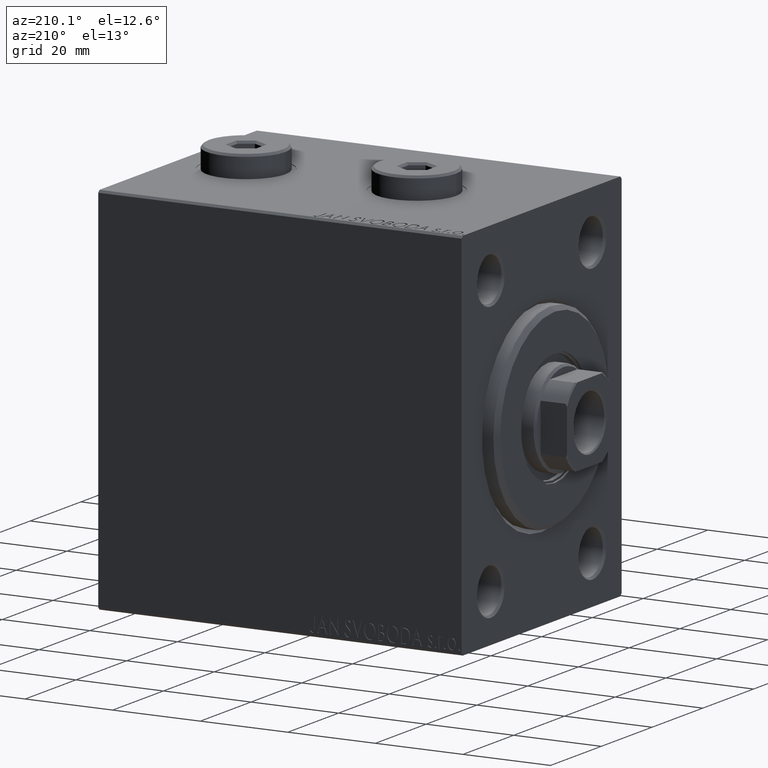
[diagram: clean part render]
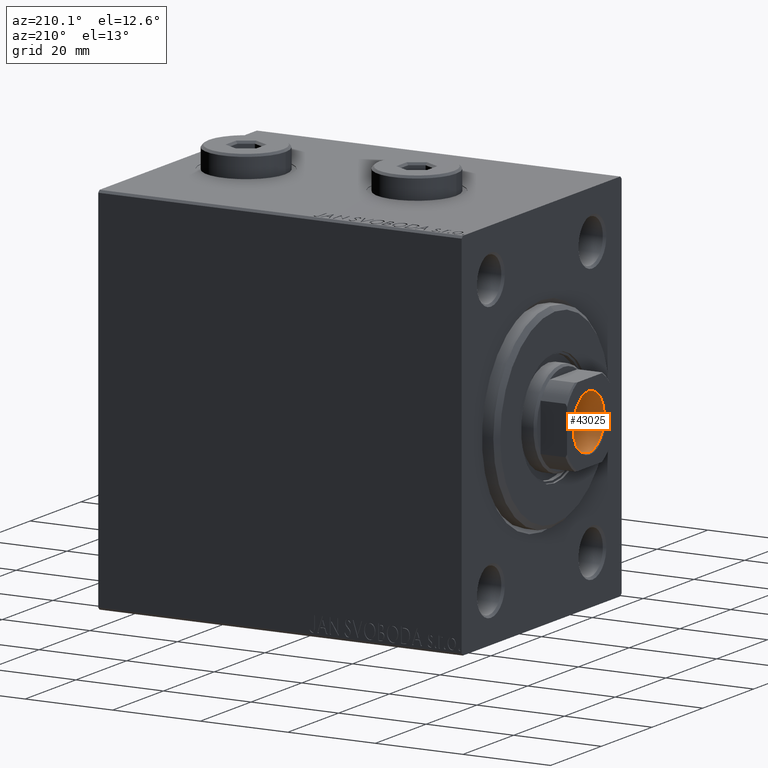
[diagram: same view with one face highlighted and labeled with its STEP entity id]
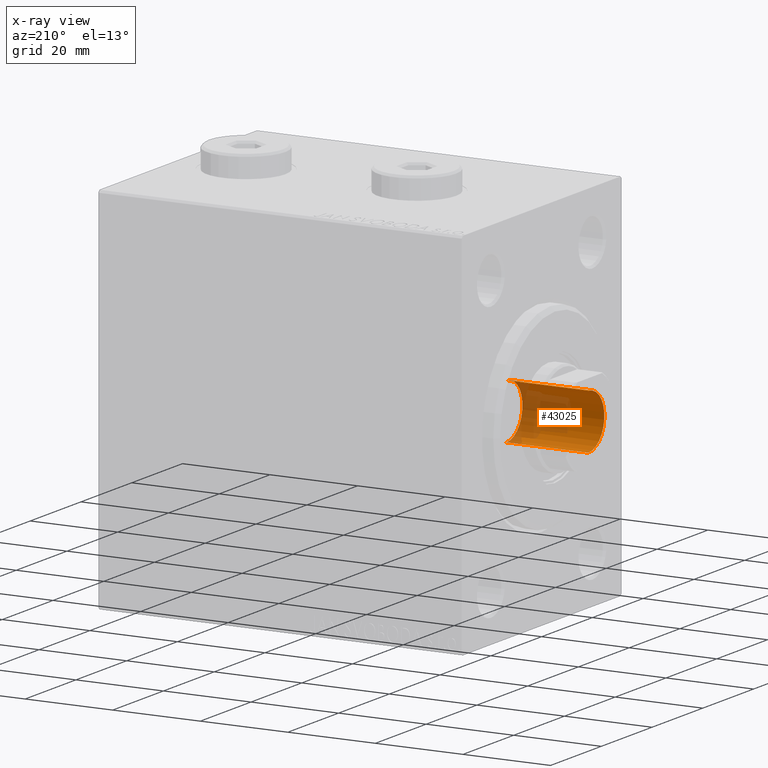
[diagram: x-ray of the same camera — body ghosted, the highlighted face saturated]
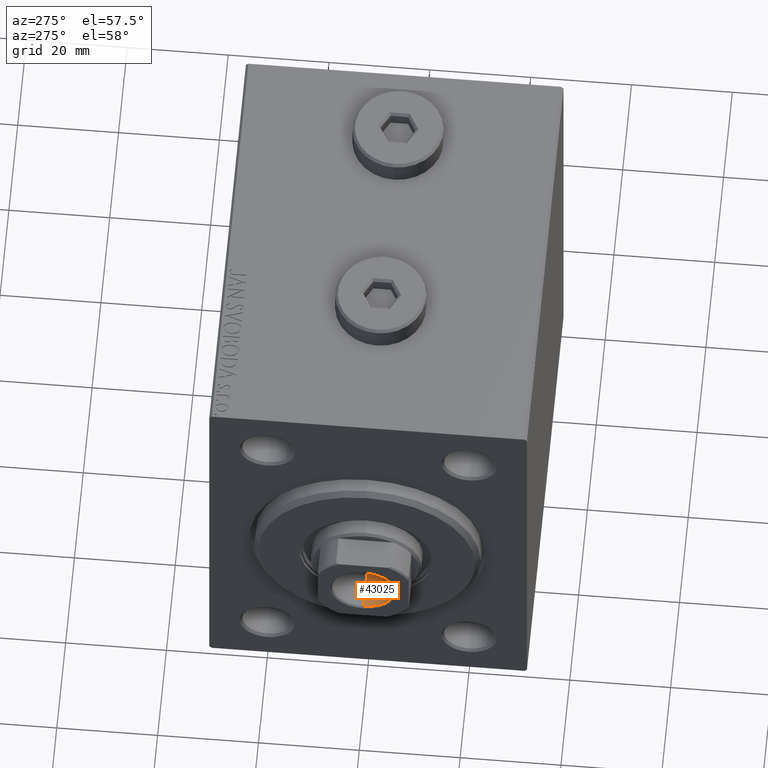
[diagram: same view with one face highlighted and labeled with its STEP entity id]
A machine part, auxiliary view. The second image highlights one B-rep face of the part: STEP entity #43025.
The next image is the same camera in x-ray: the body ghosted, the highlighted face saturated — about 43% of this face is hidden behind the body in this view.
A second angle (auxiliary view) of the same face is appended — the face is thin or edge-on in the first view.
In plain terms, the highlighted cylindrical surface (edge-blend (fillet) strip) has radius 6.25 mm, axis along (-1, 0, 0).
Its self-contained STEP definition (entity closure, byte-faithful):
#229 = CARTESIAN_POINT ( 'NONE',  ( 0.000000000000000000, 0.000000000000000000, 43.00000000000000000 ) ) ;
#367 = EDGE_CURVE ( 'NONE', #23323, #38584, #3395, .T. ) ;
#3395 = CIRCLE ( 'NONE', #4147, 6.249999999999995559 ) ;
#3845 = DIRECTION ( 'NONE',  ( 1.000000000000000000, 0.000000000000000000, 0.000000000000000000 ) ) ;
#4147 = AXIS2_PLACEMENT_3D ( 'NONE', #229, #42901, #42216 ) ;
#4570 = ORIENTED_EDGE ( 'NONE', *, *, #8024, .T. ) ;
#4771 = LINE ( 'NONE', #8423, #15552 ) ;
#4829 = DIRECTION ( 'NONE',  ( 0.000000000000000000, 0.000000000000000000, 1.000000000000000000 ) ) ;
#5249 = CARTESIAN_POINT ( 'NONE',  ( -6.249999999999996447, 7.654042494670952676E-16, 61.70000000000000995 ) ) ;
#6053 = CARTESIAN_POINT ( 'NONE',  ( -6.249999999999995559, 7.654042494670950704E-16, 43.00000000000000000 ) ) ;
#7284 = CYLINDRICAL_SURFACE ( 'NONE', #35430, 6.249999999999996447 ) ;
#8000 = CIRCLE ( 'NONE', #32206, 6.249999999999996447 ) ;
#8024 = EDGE_CURVE ( 'NONE', #38278, #25555, #8000, .T. ) ;
#8423 = CARTESIAN_POINT ( 'NONE',  ( -6.249999999999996447, 7.654042494670952676E-16, 61.99999999999999289 ) ) ;
#8845 = ORIENTED_EDGE ( 'NONE', *, *, #9189, .F. ) ;
#9189 = EDGE_CURVE ( 'NONE', #38584, #25555, #38594, .T. ) ;
#10800 = DIRECTION ( 'NONE',  ( -0.000000000000000000, -0.000000000000000000, 1.000000000000000000 ) ) ;
#12727 = ORIENTED_EDGE ( 'NONE', *, *, #367, .F. ) ;
#14661 = ORIENTED_EDGE ( 'NONE', *, *, #19375, .T. ) ;
#15020 = CARTESIAN_POINT ( 'NONE',  ( 6.249999999999995559, 0.000000000000000000, 43.00000000000000000 ) ) ;
#15552 = VECTOR ( 'NONE', #18758, 1000.000000000000000 ) ;
#18031 = EDGE_LOOP ( 'NONE', ( #12727, #14661, #4570, #8845 ) ) ;
#18758 = DIRECTION ( 'NONE',  ( -0.000000000000000000, -0.000000000000000000, 1.000000000000000000 ) ) ;
#19375 = EDGE_CURVE ( 'NONE', #23323, #38278, #4771, .T. ) ;
#21282 = CARTESIAN_POINT ( 'NONE',  ( 0.000000000000000000, 0.000000000000000000, 61.99999999999999289 ) ) ;
#22262 = CARTESIAN_POINT ( 'NONE',  ( 0.000000000000000000, 0.000000000000000000, 61.70000000000000995 ) ) ;
#23323 = VERTEX_POINT ( 'NONE', #6053 ) ;
#25555 = VERTEX_POINT ( 'NONE', #35703 ) ;
#27867 = DIRECTION ( 'NONE',  ( 1.000000000000000000, 0.000000000000000000, 0.000000000000000000 ) ) ;
#32206 = AXIS2_PLACEMENT_3D ( 'NONE', #22262, #4829, #27867 ) ;
#35296 = DIRECTION ( 'NONE',  ( -0.000000000000000000, -0.000000000000000000, 1.000000000000000000 ) ) ;
#35380 = CARTESIAN_POINT ( 'NONE',  ( 6.249999999999996447, 0.000000000000000000, 61.99999999999999289 ) ) ;
#35430 = AXIS2_PLACEMENT_3D ( 'NONE', #21282, #35296, #3845 ) ;
#35703 = CARTESIAN_POINT ( 'NONE',  ( 6.249999999999996447, 0.000000000000000000, 61.70000000000000995 ) ) ;
#36510 = VECTOR ( 'NONE', #10800, 1000.000000000000000 ) ;
#38278 = VERTEX_POINT ( 'NONE', #5249 ) ;
#38584 = VERTEX_POINT ( 'NONE', #15020 ) ;
#38594 = LINE ( 'NONE', #35380, #36510 ) ;
#38735 = FACE_OUTER_BOUND ( 'NONE', #18031, .T. ) ;
#42216 = DIRECTION ( 'NONE',  ( 1.000000000000000000, 0.000000000000000000, 0.000000000000000000 ) ) ;
#42901 = DIRECTION ( 'NONE',  ( -0.000000000000000000, -0.000000000000000000, 1.000000000000000000 ) ) ;
#43025 = ADVANCED_FACE ( 'NONE', ( #38735 ), #7284, .F. ) ;